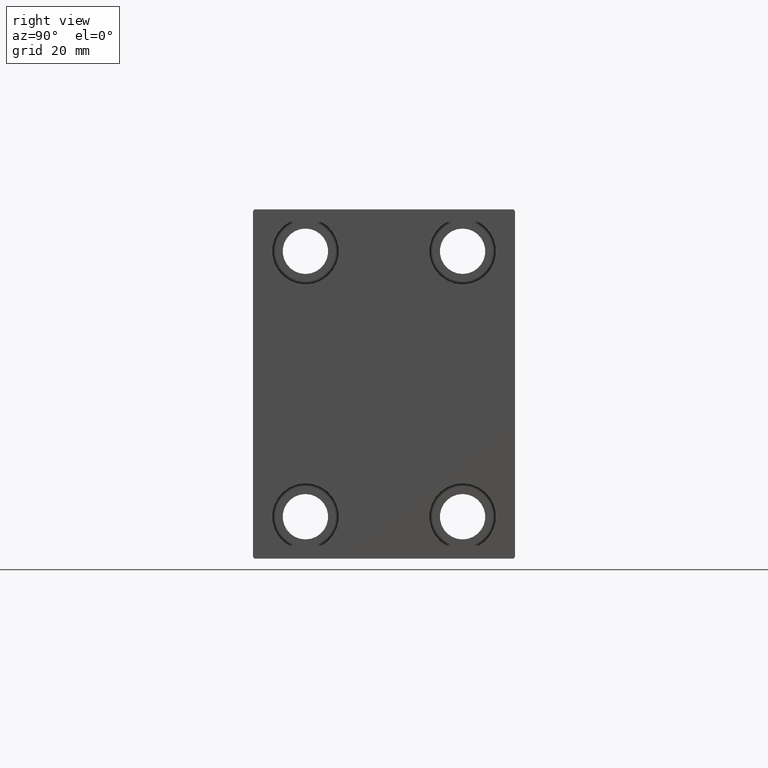
[diagram: clean part render]
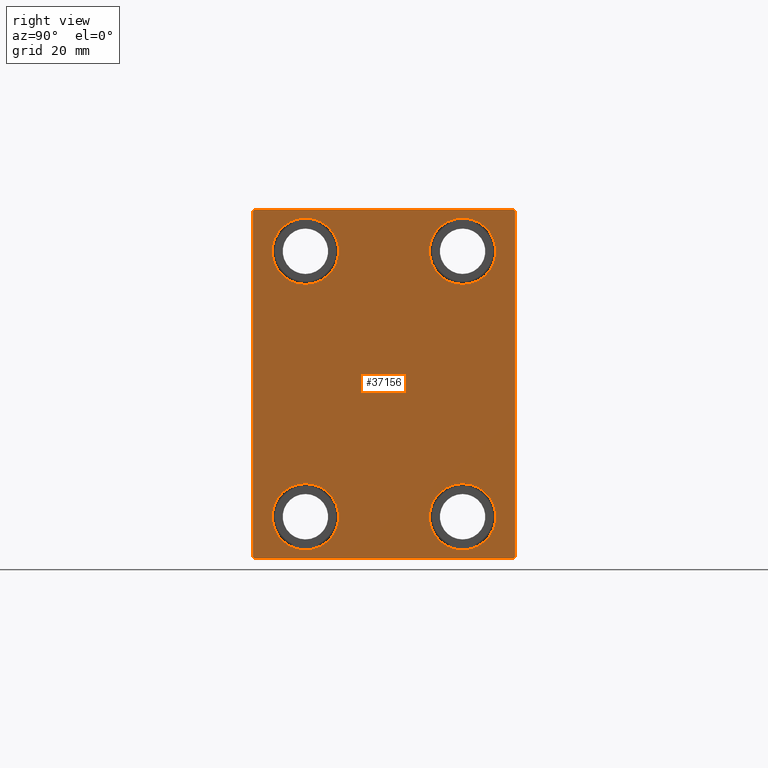
[diagram: same view with one face highlighted and labeled with its STEP entity id]
A machine part, right view. The second image highlights one B-rep face of the part: STEP entity #37156.
In plain terms, the highlighted planar face has unit normal (1, 0, 0).
Its self-contained STEP definition (entity closure, byte-faithful):
#385 = DIRECTION ( 'NONE',  ( -0.000000000000000000, 0.7071067811865474617, -0.7071067811865474617 ) ) ;
#1311 = AXIS2_PLACEMENT_3D ( 'NONE', #24926, #6700, #21222 ) ;
#1666 = EDGE_CURVE ( 'NONE', #14367, #26130, #25661, .T. ) ;
#1919 = CARTESIAN_POINT ( 'NONE',  ( 103.0000000000000000, 37.50000000000000711, -50.00000000000000000 ) ) ;
#2268 = VERTEX_POINT ( 'NONE', #15266 ) ;
#2561 = EDGE_CURVE ( 'NONE', #22618, #16235, #42666, .T. ) ;
#2689 = ORIENTED_EDGE ( 'NONE', *, *, #6473, .T. ) ;
#2745 = CARTESIAN_POINT ( 'NONE',  ( 103.0000000000000000, 43.49999999999972999, 43.50000000000033396 ) ) ;
#2984 = VERTEX_POINT ( 'NONE', #5870 ) ;
#3532 = AXIS2_PLACEMENT_3D ( 'NONE', #13778, #30895, #23965 ) ;
#3803 = EDGE_CURVE ( 'NONE', #16235, #3820, #10336, .T. ) ;
#3820 = VERTEX_POINT ( 'NONE', #10793 ) ;
#3915 = EDGE_CURVE ( 'NONE', #2984, #12692, #9475, .T. ) ;
#4604 = CARTESIAN_POINT ( 'NONE',  ( 103.0000000000000000, 22.49999999999999645, -37.99999999999999289 ) ) ;
#4737 = ORIENTED_EDGE ( 'NONE', *, *, #40612, .T. ) ;
#5121 = FACE_BOUND ( 'NONE', #35328, .T. ) ;
#5359 = FACE_OUTER_BOUND ( 'NONE', #32007, .T. ) ;
#5366 = CARTESIAN_POINT ( 'NONE',  ( 103.0000000000000000, 22.50000000000000355, 37.99999999999999289 ) ) ;
#5387 = CIRCLE ( 'NONE', #28216, 9.500000000000001776 ) ;
#5757 = VECTOR ( 'NONE', #385, 1000.000000000000114 ) ;
#5870 = CARTESIAN_POINT ( 'NONE',  ( 103.0000000000000000, -22.49999999999999645, 28.49999999999998934 ) ) ;
#5908 = CARTESIAN_POINT ( 'NONE',  ( 103.0000000000000000, 37.49999999999999289, 50.00000000000000711 ) ) ;
#5922 = LINE ( 'NONE', #6364, #27645 ) ;
#6364 = CARTESIAN_POINT ( 'NONE',  ( 103.0000000000000000, 43.49999999999950262, -43.50000000000070344 ) ) ;
#6426 = DIRECTION ( 'NONE',  ( 0.000000000000000000, 0.000000000000000000, -1.000000000000000000 ) ) ;
#6473 = EDGE_CURVE ( 'NONE', #2268, #22618, #41026, .T. ) ;
#6482 = EDGE_CURVE ( 'NONE', #15457, #2268, #23228, .T. ) ;
#6700 = DIRECTION ( 'NONE',  ( -1.000000000000000000, -0.000000000000000000, -0.000000000000000000 ) ) ;
#7306 = EDGE_CURVE ( 'NONE', #12692, #2984, #26557, .T. ) ;
#7317 = CARTESIAN_POINT ( 'NONE',  ( 103.0000000000000000, 22.49999999999999645, -47.49999999999999289 ) ) ;
#7339 = VERTEX_POINT ( 'NONE', #31032 ) ;
#7364 = VECTOR ( 'NONE', #9367, 1000.000000000000000 ) ;
#7517 = CIRCLE ( 'NONE', #19321, 9.500000000000001776 ) ;
#7526 = ORIENTED_EDGE ( 'NONE', *, *, #3915, .T. ) ;
#7604 = ORIENTED_EDGE ( 'NONE', *, *, #27897, .T. ) ;
#7830 = DIRECTION ( 'NONE',  ( -1.000000000000000000, -0.000000000000000000, -0.000000000000000000 ) ) ;
#8167 = DIRECTION ( 'NONE',  ( 0.000000000000000000, -1.387778780781445676E-16, 1.000000000000000000 ) ) ;
#8667 = LINE ( 'NONE', #5908, #21894 ) ;
#8833 = DIRECTION ( 'NONE',  ( 0.000000000000000000, 0.000000000000000000, 1.000000000000000000 ) ) ;
#8916 = ORIENTED_EDGE ( 'NONE', *, *, #6482, .T. ) ;
#9367 = DIRECTION ( 'NONE',  ( 0.000000000000000000, 0.000000000000000000, -1.000000000000000000 ) ) ;
#9475 = CIRCLE ( 'NONE', #38256, 9.500000000000001776 ) ;
#9618 = EDGE_LOOP ( 'NONE', ( #39087, #12280 ) ) ;
#10194 = CARTESIAN_POINT ( 'NONE',  ( 103.0000000000000000, -22.50000000000000711, -37.99999999999999289 ) ) ;
#10336 = LINE ( 'NONE', #10569, #32362 ) ;
#10569 = CARTESIAN_POINT ( 'NONE',  ( 103.0000000000000000, -37.50000000000000711, -50.00000000000000711 ) ) ;
#10793 = CARTESIAN_POINT ( 'NONE',  ( 103.0000000000000000, 37.00000000000000711, -50.00000000000000000 ) ) ;
#11644 = LINE ( 'NONE', #1919, #30333 ) ;
#12055 = PLANE ( 'NONE',  #28752 ) ;
#12152 = CARTESIAN_POINT ( 'NONE',  ( 103.0000000000000000, -43.49999999999998579, 43.49999999999998579 ) ) ;
#12280 = ORIENTED_EDGE ( 'NONE', *, *, #21068, .T. ) ;
#12613 = CARTESIAN_POINT ( 'NONE',  ( 103.0000000000000000, -37.50000000000000711, 49.99999999999999289 ) ) ;
#12692 = VERTEX_POINT ( 'NONE', #18237 ) ;
#13778 = CARTESIAN_POINT ( 'NONE',  ( 103.0000000000000000, -22.50000000000000711, -37.99999999999999289 ) ) ;
#14074 = VERTEX_POINT ( 'NONE', #25751 ) ;
#14367 = VERTEX_POINT ( 'NONE', #28016 ) ;
#15266 = CARTESIAN_POINT ( 'NONE',  ( 103.0000000000000000, -37.50000000000000711, 49.49999999999997868 ) ) ;
#15323 = CIRCLE ( 'NONE', #1311, 9.500000000000001776 ) ;
#15457 = VERTEX_POINT ( 'NONE', #39566 ) ;
#15597 = DIRECTION ( 'NONE',  ( 0.000000000000000000, -1.000000000000000000, -1.850371707708594316E-16 ) ) ;
#15962 = DIRECTION ( 'NONE',  ( -1.000000000000000000, -0.000000000000000000, -0.000000000000000000 ) ) ;
#16235 = VERTEX_POINT ( 'NONE', #29501 ) ;
#16670 = DIRECTION ( 'NONE',  ( -1.000000000000000000, -0.000000000000000000, -0.000000000000000000 ) ) ;
#16825 = DIRECTION ( 'NONE',  ( -0.000000000000000000, -0.7071067811865524577, 0.7071067811865426878 ) ) ;
#16927 = EDGE_LOOP ( 'NONE', ( #7526, #33199 ) ) ;
#16978 = DIRECTION ( 'NONE',  ( -0.000000000000000000, 0.7071067811865573427, 0.7071067811865378028 ) ) ;
#17203 = VERTEX_POINT ( 'NONE', #29011 ) ;
#18092 = CARTESIAN_POINT ( 'NONE',  ( 103.0000000000000000, 36.99999999999997868, 50.00000000000000711 ) ) ;
#18237 = CARTESIAN_POINT ( 'NONE',  ( 103.0000000000000000, -22.49999999999999645, 47.49999999999999289 ) ) ;
#19321 = AXIS2_PLACEMENT_3D ( 'NONE', #37033, #44193, #41408 ) ;
#19392 = VECTOR ( 'NONE', #16825, 1000.000000000000000 ) ;
#19684 = CARTESIAN_POINT ( 'NONE',  ( 103.0000000000000000, -22.49999999999999645, 37.99999999999999289 ) ) ;
#19707 = EDGE_CURVE ( 'NONE', #14074, #33355, #34399, .T. ) ;
#19894 = ORIENTED_EDGE ( 'NONE', *, *, #2561, .T. ) ;
#21068 = EDGE_CURVE ( 'NONE', #43034, #21291, #26194, .T. ) ;
#21173 = ORIENTED_EDGE ( 'NONE', *, *, #45225, .T. ) ;
#21222 = DIRECTION ( 'NONE',  ( 0.000000000000000000, 0.000000000000000000, 1.000000000000000000 ) ) ;
#21291 = VERTEX_POINT ( 'NONE', #7317 ) ;
#21477 = EDGE_CURVE ( 'NONE', #3820, #41769, #5922, .T. ) ;
#21894 = VECTOR ( 'NONE', #15597, 1000.000000000000000 ) ;
#21915 = DIRECTION ( 'NONE',  ( 0.000000000000000000, 0.000000000000000000, 1.000000000000000000 ) ) ;
#22210 = CARTESIAN_POINT ( 'NONE',  ( 103.0000000000000000, -22.50000000000000711, -28.49999999999998934 ) ) ;
#22618 = VERTEX_POINT ( 'NONE', #32860 ) ;
#23228 = LINE ( 'NONE', #12152, #34673 ) ;
#23965 = DIRECTION ( 'NONE',  ( 0.000000000000000000, 0.000000000000000000, 1.000000000000000000 ) ) ;
#24063 = DIRECTION ( 'NONE',  ( 0.000000000000000000, 0.000000000000000000, 1.000000000000000000 ) ) ;
#24339 = AXIS2_PLACEMENT_3D ( 'NONE', #34289, #37749, #44901 ) ;
#24551 = EDGE_LOOP ( 'NONE', ( #31510, #21173 ) ) ;
#24926 = CARTESIAN_POINT ( 'NONE',  ( 103.0000000000000000, 22.50000000000000355, 37.99999999999999289 ) ) ;
#25133 = EDGE_CURVE ( 'NONE', #33355, #15457, #8667, .T. ) ;
#25661 = CIRCLE ( 'NONE', #3532, 9.500000000000001776 ) ;
#25751 = CARTESIAN_POINT ( 'NONE',  ( 103.0000000000000000, 37.49999999999999289, 49.50000000000000000 ) ) ;
#26130 = VERTEX_POINT ( 'NONE', #22210 ) ;
#26194 = CIRCLE ( 'NONE', #45352, 9.500000000000001776 ) ;
#26557 = CIRCLE ( 'NONE', #24339, 9.500000000000001776 ) ;
#26843 = CARTESIAN_POINT ( 'NONE',  ( 103.0000000000000000, 37.50000000000000711, -49.50000000000001421 ) ) ;
#26975 = EDGE_CURVE ( 'NONE', #17203, #7339, #39645, .T. ) ;
#27441 = FACE_BOUND ( 'NONE', #16927, .T. ) ;
#27645 = VECTOR ( 'NONE', #16978, 1000.000000000000000 ) ;
#27897 = EDGE_CURVE ( 'NONE', #7339, #17203, #15323, .T. ) ;
#28016 = CARTESIAN_POINT ( 'NONE',  ( 103.0000000000000000, -22.50000000000000711, -47.49999999999999289 ) ) ;
#28216 = AXIS2_PLACEMENT_3D ( 'NONE', #10194, #41638, #24063 ) ;
#28752 = AXIS2_PLACEMENT_3D ( 'NONE', #38066, #34386, #6426 ) ;
#29011 = CARTESIAN_POINT ( 'NONE',  ( 103.0000000000000000, 22.50000000000000355, 47.49999999999999289 ) ) ;
#29501 = CARTESIAN_POINT ( 'NONE',  ( 103.0000000000000000, -36.99999999999999289, -50.00000000000000711 ) ) ;
#30333 = VECTOR ( 'NONE', #8167, 1000.000000000000000 ) ;
#30895 = DIRECTION ( 'NONE',  ( -1.000000000000000000, -0.000000000000000000, -0.000000000000000000 ) ) ;
#31032 = CARTESIAN_POINT ( 'NONE',  ( 103.0000000000000000, 22.50000000000000355, 28.49999999999998934 ) ) ;
#31361 = DIRECTION ( 'NONE',  ( 0.000000000000000000, 1.000000000000000000, 9.251858538542970348E-17 ) ) ;
#31510 = ORIENTED_EDGE ( 'NONE', *, *, #1666, .T. ) ;
#32007 = EDGE_LOOP ( 'NONE', ( #35693, #8916, #2689, #19894, #32964, #44612, #4737, #36835 ) ) ;
#32362 = VECTOR ( 'NONE', #31361, 1000.000000000000000 ) ;
#32860 = CARTESIAN_POINT ( 'NONE',  ( 103.0000000000000000, -37.50000000000000711, -49.49999999999999289 ) ) ;
#32964 = ORIENTED_EDGE ( 'NONE', *, *, #3803, .T. ) ;
#33068 = FACE_BOUND ( 'NONE', #24551, .T. ) ;
#33199 = ORIENTED_EDGE ( 'NONE', *, *, #7306, .T. ) ;
#33355 = VERTEX_POINT ( 'NONE', #18092 ) ;
#34289 = CARTESIAN_POINT ( 'NONE',  ( 103.0000000000000000, -22.49999999999999645, 37.99999999999999289 ) ) ;
#34386 = DIRECTION ( 'NONE',  ( 1.000000000000000000, 0.000000000000000000, 0.000000000000000000 ) ) ;
#34399 = LINE ( 'NONE', #2745, #19392 ) ;
#34673 = VECTOR ( 'NONE', #36869, 1000.000000000000114 ) ;
#34818 = ORIENTED_EDGE ( 'NONE', *, *, #26975, .T. ) ;
#35328 = EDGE_LOOP ( 'NONE', ( #7604, #34818 ) ) ;
#35693 = ORIENTED_EDGE ( 'NONE', *, *, #25133, .T. ) ;
#36701 = AXIS2_PLACEMENT_3D ( 'NONE', #5366, #15962, #43931 ) ;
#36835 = ORIENTED_EDGE ( 'NONE', *, *, #19707, .T. ) ;
#36869 = DIRECTION ( 'NONE',  ( 0.000000000000000000, -0.7071067811865474617, -0.7071067811865474617 ) ) ;
#37001 = FACE_BOUND ( 'NONE', #9618, .T. ) ;
#37033 = CARTESIAN_POINT ( 'NONE',  ( 103.0000000000000000, 22.49999999999999645, -37.99999999999999289 ) ) ;
#37156 = ADVANCED_FACE ( 'NONE', ( #37001, #27441, #5121, #33068, #5359 ), #12055, .T. ) ;
#37749 = DIRECTION ( 'NONE',  ( -1.000000000000000000, -0.000000000000000000, -0.000000000000000000 ) ) ;
#38066 = CARTESIAN_POINT ( 'NONE',  ( 103.0000000000000000, 0.000000000000000000, 0.000000000000000000 ) ) ;
#38256 = AXIS2_PLACEMENT_3D ( 'NONE', #19684, #16670, #8833 ) ;
#39087 = ORIENTED_EDGE ( 'NONE', *, *, #43705, .T. ) ;
#39438 = CARTESIAN_POINT ( 'NONE',  ( 103.0000000000000000, -43.50000000000000000, -43.50000000000000000 ) ) ;
#39566 = CARTESIAN_POINT ( 'NONE',  ( 103.0000000000000000, -36.99999999999999289, 49.99999999999999289 ) ) ;
#39645 = CIRCLE ( 'NONE', #36701, 9.500000000000001776 ) ;
#40612 = EDGE_CURVE ( 'NONE', #41769, #14074, #11644, .T. ) ;
#41026 = LINE ( 'NONE', #12613, #7364 ) ;
#41408 = DIRECTION ( 'NONE',  ( 0.000000000000000000, 0.000000000000000000, 1.000000000000000000 ) ) ;
#41638 = DIRECTION ( 'NONE',  ( -1.000000000000000000, -0.000000000000000000, -0.000000000000000000 ) ) ;
#41769 = VERTEX_POINT ( 'NONE', #26843 ) ;
#42666 = LINE ( 'NONE', #39438, #5757 ) ;
#42936 = CARTESIAN_POINT ( 'NONE',  ( 103.0000000000000000, 22.49999999999999645, -28.49999999999998934 ) ) ;
#43034 = VERTEX_POINT ( 'NONE', #42936 ) ;
#43705 = EDGE_CURVE ( 'NONE', #21291, #43034, #7517, .T. ) ;
#43931 = DIRECTION ( 'NONE',  ( 0.000000000000000000, 0.000000000000000000, 1.000000000000000000 ) ) ;
#44193 = DIRECTION ( 'NONE',  ( -1.000000000000000000, -0.000000000000000000, -0.000000000000000000 ) ) ;
#44612 = ORIENTED_EDGE ( 'NONE', *, *, #21477, .T. ) ;
#44901 = DIRECTION ( 'NONE',  ( 0.000000000000000000, 0.000000000000000000, 1.000000000000000000 ) ) ;
#45225 = EDGE_CURVE ( 'NONE', #26130, #14367, #5387, .T. ) ;
#45352 = AXIS2_PLACEMENT_3D ( 'NONE', #4604, #7830, #21915 ) ;